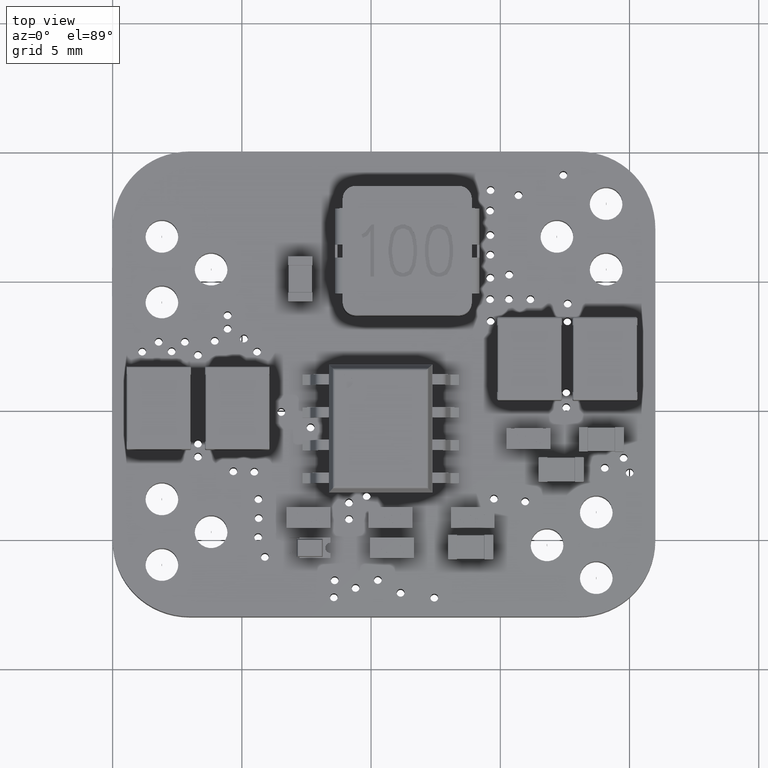
[diagram: clean part render]
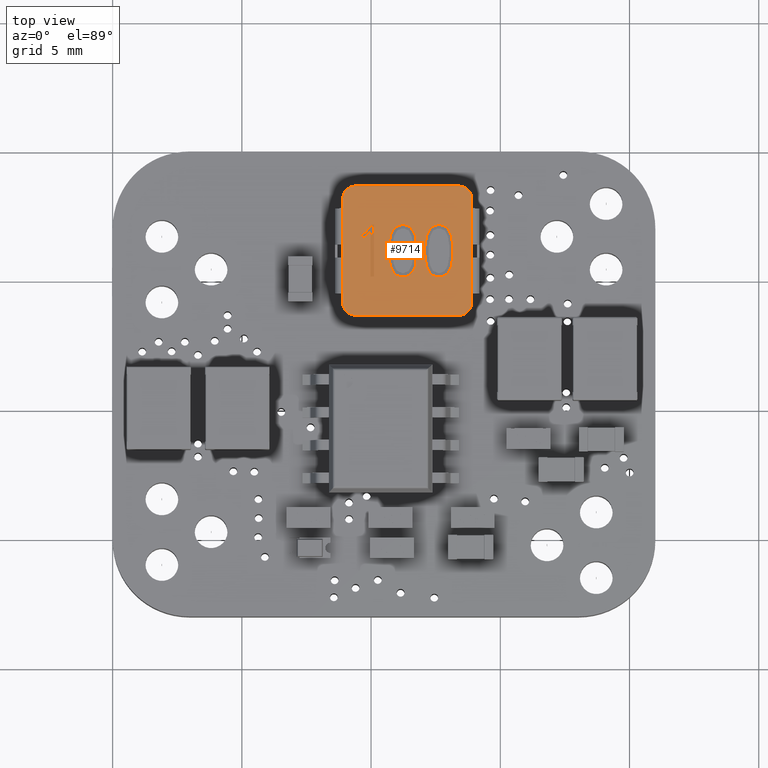
[diagram: same view with one face highlighted and labeled with its STEP entity id]
A machine part, top view. The second image highlights one B-rep face of the part: STEP entity #9714.
In plain terms, the highlighted planar face has unit normal (0, -0, 1).
Its self-contained STEP definition (entity closure, byte-faithful):
#9714 = ADVANCED_FACE('',(#9715,#9789,#9919,#10049),#10119,.T.);
#9715 = FACE_BOUND('',#9716,.T.);
#9716 = EDGE_LOOP('',(#9717,#9727,#9735,#9743,#9751,#9759,#9767,#9775,
    #9783));
#9717 = ORIENTED_EDGE('',*,*,#9718,.T.);
#9718 = EDGE_CURVE('',#9719,#9721,#9723,.T.);
#9719 = VERTEX_POINT('',#9720);
#9720 = CARTESIAN_POINT('',(-4.107239813152,3.,-3.219456979187));
#9721 = VERTEX_POINT('',#9722);
#9722 = CARTESIAN_POINT('',(-3.888235285002,3.,-3.499999969793));
#9723 = LINE('',#9724,#9725);
#9724 = CARTESIAN_POINT('',(-4.107239813152,3.,-3.219456979187));
#9725 = VECTOR('',#9726,1.);
#9726 = DIRECTION('',(0.615347934282,0.,-0.788255618296));
#9727 = ORIENTED_EDGE('',*,*,#9728,.T.);
#9728 = EDGE_CURVE('',#9721,#9729,#9731,.T.);
#9729 = VERTEX_POINT('',#9730);
#9730 = CARTESIAN_POINT('',(-3.790497726984,3.,-3.499999969793));
#9731 = LINE('',#9732,#9733);
#9732 = CARTESIAN_POINT('',(-2.5,3.,-3.499999969793));
#9733 = VECTOR('',#9734,1.);
#9734 = DIRECTION('',(1.,0.,-0.));
#9735 = ORIENTED_EDGE('',*,*,#9736,.T.);
#9736 = EDGE_CURVE('',#9729,#9737,#9739,.T.);
#9737 = VERTEX_POINT('',#9738);
#9738 = CARTESIAN_POINT('',(-3.790497726984,3.,-1.499999939991));
#9739 = LINE('',#9740,#9741);
#9740 = CARTESIAN_POINT('',(-3.790497726984,3.,-2.5));
#9741 = VECTOR('',#9742,1.);
#9742 = DIRECTION('',(0.,-0.,1.));
#9743 = ORIENTED_EDGE('',*,*,#9744,.T.);
#9744 = EDGE_CURVE('',#9737,#9745,#9747,.T.);
#9745 = VERTEX_POINT('',#9746);
#9746 = CARTESIAN_POINT('',(-3.924434380564,3.,-1.499999939991));
#9747 = LINE('',#9748,#9749);
#9748 = CARTESIAN_POINT('',(-2.5,3.,-1.499999939991));
#9749 = VECTOR('',#9750,1.);
#9750 = DIRECTION('',(-1.,-0.,0.));
#9751 = ORIENTED_EDGE('',*,*,#9752,.T.);
#9752 = EDGE_CURVE('',#9745,#9753,#9755,.T.);
#9753 = VERTEX_POINT('',#9754);
#9754 = CARTESIAN_POINT('',(-3.924434380564,3.,-3.271945667752));
#9755 = LINE('',#9756,#9757);
#9756 = CARTESIAN_POINT('',(-3.924434380564,3.,-2.5));
#9757 = VECTOR('',#9758,1.);
#9758 = DIRECTION('',(-0.,0.,-1.));
#9759 = ORIENTED_EDGE('',*,*,#9760,.T.);
#9760 = EDGE_CURVE('',#9753,#9761,#9763,.T.);
#9761 = VERTEX_POINT('',#9762);
#9762 = CARTESIAN_POINT('',(-4.020361983803,3.,-3.09276014472));
#9763 = LINE('',#9764,#9765);
#9764 = CARTESIAN_POINT('',(-3.924434380564,3.,-3.271945667752));
#9765 = VECTOR('',#9766,1.);
#9766 = DIRECTION('',(-0.471974273147,0.,0.881612321538));
#9767 = ORIENTED_EDGE('',*,*,#9768,.T.);
#9768 = EDGE_CURVE('',#9761,#9769,#9771,.T.);
#9769 = VERTEX_POINT('',#9770);
#9770 = CARTESIAN_POINT('',(-4.215837099838,3.,-2.984162858034));
#9771 = LINE('',#9772,#9773);
#9772 = CARTESIAN_POINT('',(-4.020361983803,3.,-3.09276014472));
#9773 = VECTOR('',#9774,1.);
#9774 = DIRECTION('',(-0.874157276122,0.,0.485642931179));
#9775 = ORIENTED_EDGE('',*,*,#9776,.T.);
#9776 = EDGE_CURVE('',#9769,#9777,#9779,.T.);
#9777 = VERTEX_POINT('',#9778);
#9778 = CARTESIAN_POINT('',(-4.270135743181,3.,-3.107239782945));
#9779 = LINE('',#9780,#9781);
#9780 = CARTESIAN_POINT('',(-4.215837099838,3.,-2.984162858034));
#9781 = VECTOR('',#9782,1.);
#9782 = DIRECTION('',(-0.403640206576,0.,-0.914917801573));
#9783 = ORIENTED_EDGE('',*,*,#9784,.T.);
#9784 = EDGE_CURVE('',#9777,#9719,#9785,.T.);
#9785 = LINE('',#9786,#9787);
#9786 = CARTESIAN_POINT('',(-4.270135743181,3.,-3.107239782945));
#9787 = VECTOR('',#9788,1.);
#9788 = DIRECTION('',(0.82350760101,0.,-0.567305236251));
#9789 = FACE_BOUND('',#9790,.T.);
#9790 = EDGE_LOOP('',(#9791,#9801,#9809,#9817,#9825,#9833,#9841,#9849,
    #9857,#9865,#9873,#9881,#9889,#9897,#9905,#9913));
#9791 = ORIENTED_EDGE('',*,*,#9792,.T.);
#9792 = EDGE_CURVE('',#9793,#9795,#9797,.T.);
#9793 = VERTEX_POINT('',#9794);
#9794 = CARTESIAN_POINT('',(-2.349773723615,3.,-3.396832547441));
#9795 = VERTEX_POINT('',#9796);
#9796 = CARTESIAN_POINT('',(-2.19230765792,3.,-3.094570099498));
#9797 = LINE('',#9798,#9799);
#9798 = CARTESIAN_POINT('',(-2.349773723615,3.,-3.396832547441));
#9799 = VECTOR('',#9800,1.);
#9800 = DIRECTION('',(0.462021445764,0.,0.886868752214));
#9801 = ORIENTED_EDGE('',*,*,#9802,.T.);
#9802 = EDGE_CURVE('',#9795,#9803,#9805,.T.);
#9803 = VERTEX_POINT('',#9804);
#9804 = CARTESIAN_POINT('',(-2.121719421574,3.,-2.631221676304));
#9805 = LINE('',#9806,#9807);
#9806 = CARTESIAN_POINT('',(-2.19230765792,3.,-3.094570099498));
#9807 = VECTOR('',#9808,1.);
#9808 = DIRECTION('',(0.150606094644,0.,0.988593852022));
#9809 = ORIENTED_EDGE('',*,*,#9810,.T.);
#9810 = EDGE_CURVE('',#9803,#9811,#9813,.T.);
#9811 = VERTEX_POINT('',#9812);
#9812 = CARTESIAN_POINT('',(-2.121719421574,3.,-2.350678685699));
#9813 = LINE('',#9814,#9815);
#9814 = CARTESIAN_POINT('',(-2.121719421574,3.,-2.5));
#9815 = VECTOR('',#9816,1.);
#9816 = DIRECTION('',(0.,-0.,1.));
#9817 = ORIENTED_EDGE('',*,*,#9818,.T.);
#9818 = EDGE_CURVE('',#9811,#9819,#9821,.T.);
#9819 = VERTEX_POINT('',#9820);
#9820 = CARTESIAN_POINT('',(-2.19230765792,3.,-1.885520307726));
#9821 = LINE('',#9822,#9823);
#9822 = CARTESIAN_POINT('',(-2.121719421574,3.,-2.350678685699));
#9823 = VECTOR('',#9824,1.);
#9824 = DIRECTION('',(-0.150033295106,0.,0.988680944673));
#9825 = ORIENTED_EDGE('',*,*,#9826,.T.);
#9826 = EDGE_CURVE('',#9819,#9827,#9829,.T.);
#9827 = VERTEX_POINT('',#9828);
#9828 = CARTESIAN_POINT('',(-2.349773723615,3.,-1.581447905005));
#9829 = LINE('',#9830,#9831);
#9830 = CARTESIAN_POINT('',(-2.19230765792,3.,-1.885520307726));
#9831 = VECTOR('',#9832,1.);
#9832 = DIRECTION('',(-0.459854247661,0.,0.887994409277));
#9833 = ORIENTED_EDGE('',*,*,#9834,.T.);
#9834 = EDGE_CURVE('',#9827,#9835,#9837,.T.);
#9835 = VERTEX_POINT('',#9836);
#9836 = CARTESIAN_POINT('',(-2.588687754325,3.,-1.48190039221));
#9837 = LINE('',#9838,#9839);
#9838 = CARTESIAN_POINT('',(-2.349773723615,3.,-1.581447905005));
#9839 = VECTOR('',#9840,1.);
#9840 = DIRECTION('',(-0.923076923077,0.,0.384615384615));
#9841 = ORIENTED_EDGE('',*,*,#9842,.T.);
#9842 = EDGE_CURVE('',#9835,#9843,#9845,.T.);
#9843 = VERTEX_POINT('',#9844);
#9844 = CARTESIAN_POINT('',(-2.751583684354,3.,-1.48190039221));
#9845 = LINE('',#9846,#9847);
#9846 = CARTESIAN_POINT('',(-2.5,3.,-1.48190039221));
#9847 = VECTOR('',#9848,1.);
#9848 = DIRECTION('',(-1.,-0.,0.));
#9849 = ORIENTED_EDGE('',*,*,#9850,.T.);
#9850 = EDGE_CURVE('',#9843,#9851,#9853,.T.);
#9851 = VERTEX_POINT('',#9852);
#9852 = CARTESIAN_POINT('',(-2.990497715063,3.,-1.581447905005));
#9853 = LINE('',#9854,#9855);
#9854 = CARTESIAN_POINT('',(-2.751583684354,3.,-1.48190039221));
#9855 = VECTOR('',#9856,1.);
#9856 = DIRECTION('',(-0.923076923077,0.,-0.384615384615));
#9857 = ORIENTED_EDGE('',*,*,#9858,.T.);
#9858 = EDGE_CURVE('',#9851,#9859,#9861,.T.);
#9859 = VERTEX_POINT('',#9860);
#9860 = CARTESIAN_POINT('',(-3.147963780758,3.,-1.885520307726));
#9861 = LINE('',#9862,#9863);
#9862 = CARTESIAN_POINT('',(-2.990497715063,3.,-1.581447905005));
#9863 = VECTOR('',#9864,1.);
#9864 = DIRECTION('',(-0.459854247661,0.,-0.887994409277));
#9865 = ORIENTED_EDGE('',*,*,#9866,.T.);
#9866 = EDGE_CURVE('',#9859,#9867,#9869,.T.);
#9867 = VERTEX_POINT('',#9868);
#9868 = CARTESIAN_POINT('',(-3.218552017104,3.,-2.347058776142));
#9869 = LINE('',#9870,#9871);
#9870 = CARTESIAN_POINT('',(-3.147963780758,3.,-1.885520307726));
#9871 = VECTOR('',#9872,1.);
#9872 = DIRECTION('',(-0.151183233296,0.,-0.988505756164));
#9873 = ORIENTED_EDGE('',*,*,#9874,.T.);
#9874 = EDGE_CURVE('',#9867,#9875,#9877,.T.);
#9875 = VERTEX_POINT('',#9876);
#9876 = CARTESIAN_POINT('',(-3.218552017104,3.,-2.633031631082));
#9877 = LINE('',#9878,#9879);
#9878 = CARTESIAN_POINT('',(-3.218552017104,3.,-2.5));
#9879 = VECTOR('',#9880,1.);
#9880 = DIRECTION('',(-0.,0.,-1.));
#9881 = ORIENTED_EDGE('',*,*,#9882,.T.);
#9882 = EDGE_CURVE('',#9875,#9883,#9885,.T.);
#9883 = VERTEX_POINT('',#9884);
#9884 = CARTESIAN_POINT('',(-3.147963780758,3.,-3.094570099498));
#9885 = LINE('',#9886,#9887);
#9886 = CARTESIAN_POINT('',(-3.218552017104,3.,-2.633031631082));
#9887 = VECTOR('',#9888,1.);
#9888 = DIRECTION('',(0.151183233296,0.,-0.988505756164));
#9889 = ORIENTED_EDGE('',*,*,#9890,.T.);
#9890 = EDGE_CURVE('',#9883,#9891,#9893,.T.);
#9891 = VERTEX_POINT('',#9892);
#9892 = CARTESIAN_POINT('',(-2.990497715063,3.,-3.396832547441));
#9893 = LINE('',#9894,#9895);
#9894 = CARTESIAN_POINT('',(-3.147963780758,3.,-3.094570099498));
#9895 = VECTOR('',#9896,1.);
#9896 = DIRECTION('',(0.462021445764,0.,-0.886868752214));
#9897 = ORIENTED_EDGE('',*,*,#9898,.T.);
#9898 = EDGE_CURVE('',#9891,#9899,#9901,.T.);
#9899 = VERTEX_POINT('',#9900);
#9900 = CARTESIAN_POINT('',(-2.749773729576,3.,-3.499999969793));
#9901 = LINE('',#9902,#9903);
#9902 = CARTESIAN_POINT('',(-2.990497715063,3.,-3.396832547441));
#9903 = VECTOR('',#9904,1.);
#9904 = DIRECTION('',(0.919145030018,0.,-0.393919298579));
#9905 = ORIENTED_EDGE('',*,*,#9906,.T.);
#9906 = EDGE_CURVE('',#9899,#9907,#9909,.T.);
#9907 = VERTEX_POINT('',#9908);
#9908 = CARTESIAN_POINT('',(-2.590497709103,3.,-3.499999969793));
#9909 = LINE('',#9910,#9911);
#9910 = CARTESIAN_POINT('',(-2.5,3.,-3.499999969793));
#9911 = VECTOR('',#9912,1.);
#9912 = DIRECTION('',(1.,0.,-0.));
#9913 = ORIENTED_EDGE('',*,*,#9914,.T.);
#9914 = EDGE_CURVE('',#9907,#9793,#9915,.T.);
#9915 = LINE('',#9916,#9917);
#9916 = CARTESIAN_POINT('',(-2.590497709103,3.,-3.499999969793));
#9917 = VECTOR('',#9918,1.);
#9918 = DIRECTION('',(0.919145030018,0.,0.393919298579));
#9919 = FACE_BOUND('',#9920,.T.);
#9920 = EDGE_LOOP('',(#9921,#9931,#9939,#9947,#9955,#9963,#9971,#9979,
    #9987,#9995,#10003,#10011,#10019,#10027,#10035,#10043));
#9921 = ORIENTED_EDGE('',*,*,#9922,.T.);
#9922 = EDGE_CURVE('',#9923,#9925,#9927,.T.);
#9923 = VERTEX_POINT('',#9924);
#9924 = CARTESIAN_POINT('',(-0.952488634921,3.,-3.396832547441));
#9925 = VERTEX_POINT('',#9926);
#9926 = CARTESIAN_POINT('',(-0.795022569226,3.,-3.094570099498));
#9927 = LINE('',#9928,#9929);
#9928 = CARTESIAN_POINT('',(-0.952488634921,3.,-3.396832547441));
#9929 = VECTOR('',#9930,1.);
#9930 = DIRECTION('',(0.462021445764,0.,0.886868752214));
#9931 = ORIENTED_EDGE('',*,*,#9932,.T.);
#9932 = EDGE_CURVE('',#9925,#9933,#9935,.T.);
#9933 = VERTEX_POINT('',#9934);
#9934 = CARTESIAN_POINT('',(-0.72443433288,3.,-2.631221676304));
#9935 = LINE('',#9936,#9937);
#9936 = CARTESIAN_POINT('',(-0.795022569226,3.,-3.094570099498));
#9937 = VECTOR('',#9938,1.);
#9938 = DIRECTION('',(0.150606094644,0.,0.988593852022));
#9939 = ORIENTED_EDGE('',*,*,#9940,.T.);
#9940 = EDGE_CURVE('',#9933,#9941,#9943,.T.);
#9941 = VERTEX_POINT('',#9942);
#9942 = CARTESIAN_POINT('',(-0.72443433288,3.,-2.350678685699));
#9943 = LINE('',#9944,#9945);
#9944 = CARTESIAN_POINT('',(-0.72443433288,3.,-2.5));
#9945 = VECTOR('',#9946,1.);
#9946 = DIRECTION('',(0.,-0.,1.));
#9947 = ORIENTED_EDGE('',*,*,#9948,.T.);
#9948 = EDGE_CURVE('',#9941,#9949,#9951,.T.);
#9949 = VERTEX_POINT('',#9950);
#9950 = CARTESIAN_POINT('',(-0.795022569226,3.,-1.885520307726));
#9951 = LINE('',#9952,#9953);
#9952 = CARTESIAN_POINT('',(-0.72443433288,3.,-2.350678685699));
#9953 = VECTOR('',#9954,1.);
#9954 = DIRECTION('',(-0.150033295106,0.,0.988680944673));
#9955 = ORIENTED_EDGE('',*,*,#9956,.T.);
#9956 = EDGE_CURVE('',#9949,#9957,#9959,.T.);
#9957 = VERTEX_POINT('',#9958);
#9958 = CARTESIAN_POINT('',(-0.952488634921,3.,-1.581447905005));
#9959 = LINE('',#9960,#9961);
#9960 = CARTESIAN_POINT('',(-0.795022569226,3.,-1.885520307726));
#9961 = VECTOR('',#9962,1.);
#9962 = DIRECTION('',(-0.459854247661,0.,0.887994409277));
#9963 = ORIENTED_EDGE('',*,*,#9964,.T.);
#9964 = EDGE_CURVE('',#9957,#9965,#9967,.T.);
#9965 = VERTEX_POINT('',#9966);
#9966 = CARTESIAN_POINT('',(-1.19140266563,3.,-1.48190039221));
#9967 = LINE('',#9968,#9969);
#9968 = CARTESIAN_POINT('',(-0.952488634921,3.,-1.581447905005));
#9969 = VECTOR('',#9970,1.);
#9970 = DIRECTION('',(-0.923076923077,0.,0.384615384615));
#9971 = ORIENTED_EDGE('',*,*,#9972,.T.);
#9972 = EDGE_CURVE('',#9965,#9973,#9975,.T.);
#9973 = VERTEX_POINT('',#9974);
#9974 = CARTESIAN_POINT('',(-1.354298595659,3.,-1.48190039221));
#9975 = LINE('',#9976,#9977);
#9976 = CARTESIAN_POINT('',(-2.5,3.,-1.48190039221));
#9977 = VECTOR('',#9978,1.);
#9978 = DIRECTION('',(-1.,-0.,0.));
#9979 = ORIENTED_EDGE('',*,*,#9980,.T.);
#9980 = EDGE_CURVE('',#9973,#9981,#9983,.T.);
#9981 = VERTEX_POINT('',#9982);
#9982 = CARTESIAN_POINT('',(-1.593212626369,3.,-1.581447905005));
#9983 = LINE('',#9984,#9985);
#9984 = CARTESIAN_POINT('',(-1.354298595659,3.,-1.48190039221));
#9985 = VECTOR('',#9986,1.);
#9986 = DIRECTION('',(-0.923076923077,0.,-0.384615384615));
#9987 = ORIENTED_EDGE('',*,*,#9988,.T.);
#9988 = EDGE_CURVE('',#9981,#9989,#9991,.T.);
#9989 = VERTEX_POINT('',#9990);
#9990 = CARTESIAN_POINT('',(-1.750678692064,3.,-1.885520307726));
#9991 = LINE('',#9992,#9993);
#9992 = CARTESIAN_POINT('',(-1.593212626369,3.,-1.581447905005));
#9993 = VECTOR('',#9994,1.);
#9994 = DIRECTION('',(-0.459854247661,0.,-0.887994409277));
#9995 = ORIENTED_EDGE('',*,*,#9996,.T.);
#9996 = EDGE_CURVE('',#9989,#9997,#9999,.T.);
#9997 = VERTEX_POINT('',#9998);
#9998 = CARTESIAN_POINT('',(-1.82126692841,3.,-2.347058776142));
#9999 = LINE('',#10000,#10001);
#10000 = CARTESIAN_POINT('',(-1.750678692064,3.,-1.885520307726));
#10001 = VECTOR('',#10002,1.);
#10002 = DIRECTION('',(-0.151183233296,0.,-0.988505756164));
#10003 = ORIENTED_EDGE('',*,*,#10004,.T.);
#10004 = EDGE_CURVE('',#9997,#10005,#10007,.T.);
#10005 = VERTEX_POINT('',#10006);
#10006 = CARTESIAN_POINT('',(-1.82126692841,3.,-2.633031631082));
#10007 = LINE('',#10008,#10009);
#10008 = CARTESIAN_POINT('',(-1.82126692841,3.,-2.5));
#10009 = VECTOR('',#10010,1.);
#10010 = DIRECTION('',(-0.,0.,-1.));
#10011 = ORIENTED_EDGE('',*,*,#10012,.T.);
#10012 = EDGE_CURVE('',#10005,#10013,#10015,.T.);
#10013 = VERTEX_POINT('',#10014);
#10014 = CARTESIAN_POINT('',(-1.750678692064,3.,-3.094570099498));
#10015 = LINE('',#10016,#10017);
#10016 = CARTESIAN_POINT('',(-1.82126692841,3.,-2.633031631082));
#10017 = VECTOR('',#10018,1.);
#10018 = DIRECTION('',(0.151183233296,0.,-0.988505756164));
#10019 = ORIENTED_EDGE('',*,*,#10020,.T.);
#10020 = EDGE_CURVE('',#10013,#10021,#10023,.T.);
#10021 = VERTEX_POINT('',#10022);
#10022 = CARTESIAN_POINT('',(-1.593212626369,3.,-3.396832547441));
#10023 = LINE('',#10024,#10025);
#10024 = CARTESIAN_POINT('',(-1.750678692064,3.,-3.094570099498));
#10025 = VECTOR('',#10026,1.);
#10026 = DIRECTION('',(0.462021445764,0.,-0.886868752214));
#10027 = ORIENTED_EDGE('',*,*,#10028,.T.);
#10028 = EDGE_CURVE('',#10021,#10029,#10031,.T.);
#10029 = VERTEX_POINT('',#10030);
#10030 = CARTESIAN_POINT('',(-1.352488640881,3.,-3.499999969793));
#10031 = LINE('',#10032,#10033);
#10032 = CARTESIAN_POINT('',(-1.593212626369,3.,-3.396832547441));
#10033 = VECTOR('',#10034,1.);
#10034 = DIRECTION('',(0.919145030018,0.,-0.393919298579));
#10035 = ORIENTED_EDGE('',*,*,#10036,.T.);
#10036 = EDGE_CURVE('',#10029,#10037,#10039,.T.);
#10037 = VERTEX_POINT('',#10038);
#10038 = CARTESIAN_POINT('',(-1.193212620408,3.,-3.499999969793));
#10039 = LINE('',#10040,#10041);
#10040 = CARTESIAN_POINT('',(-2.5,3.,-3.499999969793));
#10041 = VECTOR('',#10042,1.);
#10042 = DIRECTION('',(1.,0.,-0.));
#10043 = ORIENTED_EDGE('',*,*,#10044,.T.);
#10044 = EDGE_CURVE('',#10037,#9923,#10045,.T.);
#10045 = LINE('',#10046,#10047);
#10046 = CARTESIAN_POINT('',(-1.193212620408,3.,-3.499999969793));
#10047 = VECTOR('',#10048,1.);
#10048 = DIRECTION('',(0.919145030018,0.,0.393919298579));
#10049 = FACE_BOUND('',#10050,.T.);
#10050 = EDGE_LOOP('',(#10051,#10061,#10070,#10078,#10087,#10095,#10104,
    #10112));
#10051 = ORIENTED_EDGE('',*,*,#10052,.T.);
#10052 = EDGE_CURVE('',#10053,#10055,#10057,.T.);
#10053 = VERTEX_POINT('',#10054);
#10054 = CARTESIAN_POINT('',(-5.421010862428E-17,3.,-0.5));
#10055 = VERTEX_POINT('',#10056);
#10056 = CARTESIAN_POINT('',(-7.047314121156E-16,3.,-4.5));
#10057 = LINE('',#10058,#10059);
#10058 = CARTESIAN_POINT('',(0.,3.,-2.5));
#10059 = VECTOR('',#10060,1.);
#10060 = DIRECTION('',(-0.,0.,-1.));
#10061 = ORIENTED_EDGE('',*,*,#10062,.F.);
#10062 = EDGE_CURVE('',#10063,#10055,#10065,.T.);
#10063 = VERTEX_POINT('',#10064);
#10064 = CARTESIAN_POINT('',(-0.5,3.,-5.));
#10065 = CIRCLE('',#10066,0.5);
#10066 = AXIS2_PLACEMENT_3D('',#10067,#10068,#10069);
#10067 = CARTESIAN_POINT('',(-0.5,3.,-4.5));
#10068 = DIRECTION('',(0.,-1.,0.));
#10069 = DIRECTION('',(0.,0.,1.));
#10070 = ORIENTED_EDGE('',*,*,#10071,.T.);
#10071 = EDGE_CURVE('',#10063,#10072,#10074,.T.);
#10072 = VERTEX_POINT('',#10073);
#10073 = CARTESIAN_POINT('',(-4.5,3.,-5.));
#10074 = LINE('',#10075,#10076);
#10075 = CARTESIAN_POINT('',(-2.5,3.,-5.));
#10076 = VECTOR('',#10077,1.);
#10077 = DIRECTION('',(-1.,-0.,0.));
#10078 = ORIENTED_EDGE('',*,*,#10079,.F.);
#10079 = EDGE_CURVE('',#10080,#10072,#10082,.T.);
#10080 = VERTEX_POINT('',#10081);
#10081 = CARTESIAN_POINT('',(-5.,3.,-4.5));
#10082 = CIRCLE('',#10083,0.5);
#10083 = AXIS2_PLACEMENT_3D('',#10084,#10085,#10086);
#10084 = CARTESIAN_POINT('',(-4.5,3.,-4.5));
#10085 = DIRECTION('',(0.,-1.,0.));
#10086 = DIRECTION('',(0.,0.,1.));
#10087 = ORIENTED_EDGE('',*,*,#10088,.T.);
#10088 = EDGE_CURVE('',#10080,#10089,#10091,.T.);
#10089 = VERTEX_POINT('',#10090);
#10090 = CARTESIAN_POINT('',(-5.,3.,-0.5));
#10091 = LINE('',#10092,#10093);
#10092 = CARTESIAN_POINT('',(-5.,3.,-2.5));
#10093 = VECTOR('',#10094,1.);
#10094 = DIRECTION('',(0.,-0.,1.));
#10095 = ORIENTED_EDGE('',*,*,#10096,.F.);
#10096 = EDGE_CURVE('',#10097,#10089,#10099,.T.);
#10097 = VERTEX_POINT('',#10098);
#10098 = CARTESIAN_POINT('',(-4.5,3.,1.13841228111E-15));
#10099 = CIRCLE('',#10100,0.5);
#10100 = AXIS2_PLACEMENT_3D('',#10101,#10102,#10103);
#10101 = CARTESIAN_POINT('',(-4.5,3.,-0.5));
#10102 = DIRECTION('',(0.,-1.,0.));
#10103 = DIRECTION('',(0.,0.,1.));
#10104 = ORIENTED_EDGE('',*,*,#10105,.T.);
#10105 = EDGE_CURVE('',#10097,#10106,#10108,.T.);
#10106 = VERTEX_POINT('',#10107);
#10107 = CARTESIAN_POINT('',(-0.5,3.,7.047314121156E-16));
#10108 = LINE('',#10109,#10110);
#10109 = CARTESIAN_POINT('',(-2.5,3.,1.301042606983E-15));
#10110 = VECTOR('',#10111,1.);
#10111 = DIRECTION('',(1.,0.,-0.));
#10112 = ORIENTED_EDGE('',*,*,#10113,.F.);
#10113 = EDGE_CURVE('',#10053,#10106,#10114,.T.);
#10114 = CIRCLE('',#10115,0.5);
#10115 = AXIS2_PLACEMENT_3D('',#10116,#10117,#10118);
#10116 = CARTESIAN_POINT('',(-0.5,3.,-0.5));
#10117 = DIRECTION('',(0.,-1.,0.));
#10118 = DIRECTION('',(0.,0.,1.));
#10119 = PLANE('',#10120);
#10120 = AXIS2_PLACEMENT_3D('',#10121,#10122,#10123);
#10121 = CARTESIAN_POINT('',(-2.5,3.,-2.5));
#10122 = DIRECTION('',(0.,1.,0.));
#10123 = DIRECTION('',(0.,-0.,1.));